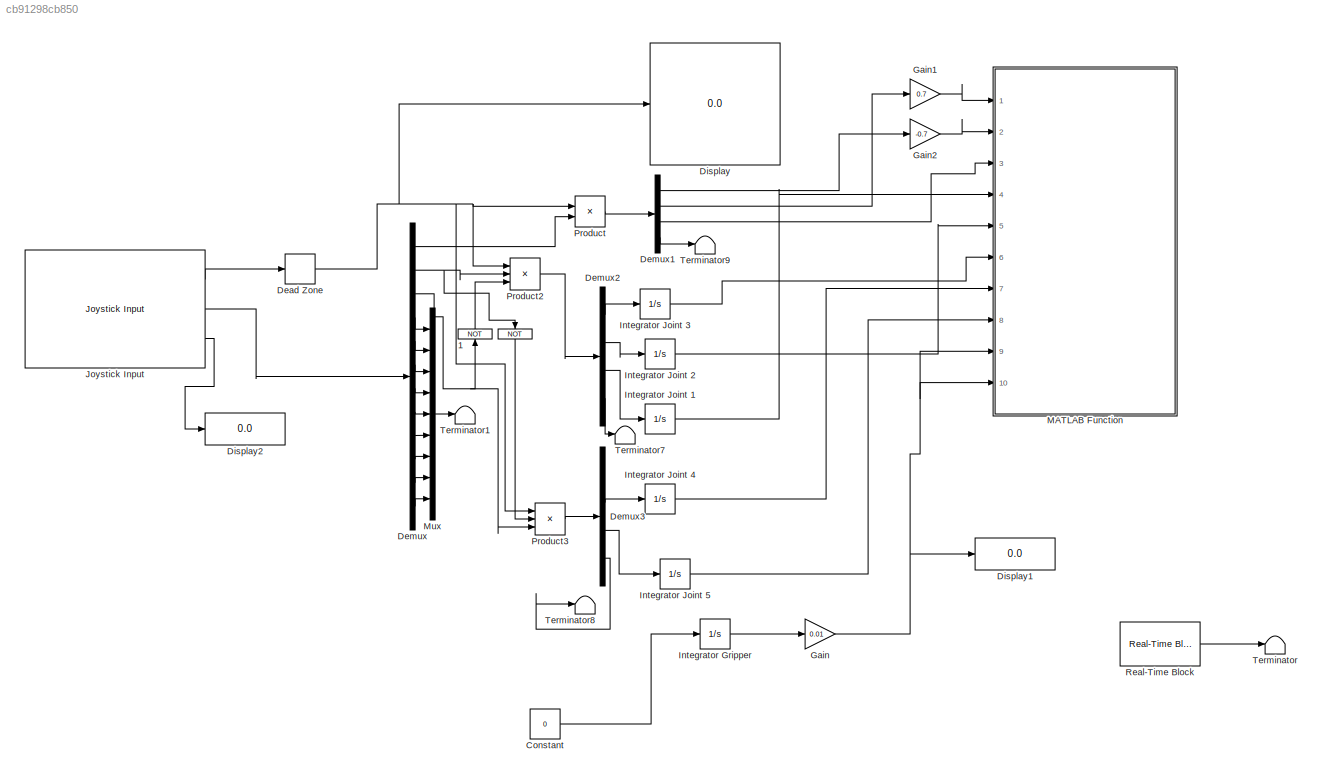
MODEL slx_cb91298cb850
KIND model
BLOCK [Logic]  
  AllPortsSameDT = off
  Operator = NOT
  OutDataTypeStr = boolean
  Ports = [1, 1]
BLOCK [Logic]  1
  AllPortsSameDT = off
  Operator = NOT
  OutDataTypeStr = boolean
  Ports = [1, 1]
BLOCK [Constant] Constant
  Value = 0
BLOCK [DeadZone] Dead Zone
  LowerValue = -0.1
  UpperValue = 0.1
BLOCK [Demux] Demux
  DisplayOption = bar
  Outputs = 12
  Ports = [1, 12]
BLOCK [Demux] Demux1
  DisplayOption = bar
  Ports = [1, 4]
BLOCK [Demux] Demux2
  DisplayOption = bar
  Ports = [1, 4]
BLOCK [Demux] Demux3
  DisplayOption = bar
  Ports = [1, 4]
BLOCK [Display] Display
  Decimation = 1
  Ports = [1]
BLOCK [Display] Display1
  Decimation = 1
  Ports = [1]
BLOCK [Display] Display2
  Decimation = 1
  Ports = [1]
BLOCK [Gain] Gain
  Gain = 0.01
  OutDataTypeStr = Inherit: Inherit via internal rule
  ParamDataTypeStr = Inherit: Inherit via internal rule
  SaturateOnIntegerOverflow = off
BLOCK [Gain] Gain1
  Gain = 0.7
  OutDataTypeStr = Inherit: Inherit via internal rule
  ParamDataTypeStr = Inherit: Inherit via internal rule
  SaturateOnIntegerOverflow = off
BLOCK [Gain] Gain2
  Gain = -0.7
  OutDataTypeStr = Inherit: Inherit via internal rule
  ParamDataTypeStr = Inherit: Inherit via internal rule
  SaturateOnIntegerOverflow = off
BLOCK [Integrator] Integrator Gripper
  LimitOutput = on
  LowerSaturationLimit = 0
  Ports = [1, 1]
  UpperSaturationLimit = 1
BLOCK [Integrator] Integrator Joint 1 
  InitialCondition = 0.02
  LimitOutput = on
  LowerSaturationLimit = 0.02
  Ports = [1, 1]
  UpperSaturationLimit = 5.84
BLOCK [Integrator] Integrator Joint 2
  InitialCondition = 0.02
  LimitOutput = on
  LowerSaturationLimit = 0.02
  Ports = [1, 1]
  UpperSaturationLimit = 2.61
BLOCK [Integrator] Integrator Joint 3 
  InitialCondition = -0.02
  LimitOutput = on
  LowerSaturationLimit = -5.02
  Ports = [1, 1]
  UpperSaturationLimit = -0.02
BLOCK [Integrator] Integrator Joint 4
  InitialCondition = 0.03
  LimitOutput = on
  LowerSaturationLimit = 0.03
  Ports = [1, 1]
  UpperSaturationLimit = 3.42
BLOCK [Integrator] Integrator Joint 5 
  InitialCondition = 0.12
  LimitOutput = on
  LowerSaturationLimit = 0.12
  Ports = [1, 1]
  UpperSaturationLimit = 5.64
BLOCK [Reference] Joystick Input  REF=vrlib/Joystick Input
  Ports = [0, 3]
  SourceBlock = vrlib/Joystick Input
  SourceType = Joystick Input
  adjustports = on
  forcefeed = off
  joyid = 1
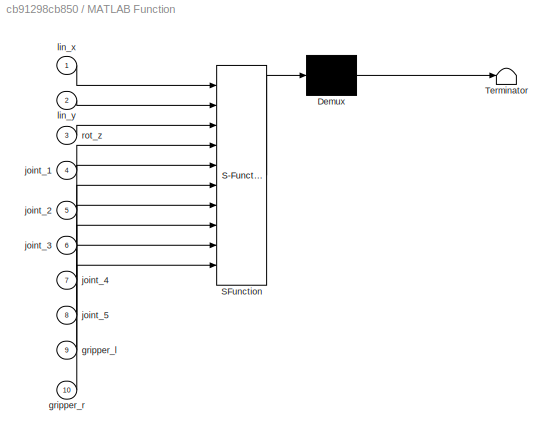
BLOCK [SubSystem] MATLAB Function
  ErrorFcn = Stateflow.Translate.translate
  FunctionWithSeparateData = off
  MaskHideContents = off
  MinAlgLoopOccurrences = off
  Opaque = off
  PermitHierarchicalResolution = ExplicitOnly
  Ports = [10]
  PropExecContextOutsideSubsystem = off
  RTWSystemCode = Auto
  RequestExecContextInheritance = off
  SFBlockType = MATLAB Function
  StartFcn = %ros_node = rosmatlab.node('KUKA_SIMULINK_CONTROL','192.168.65.59',11311);          \n ros_node = rosmatlab.node('KUKA_SIMULINK_CONTROL',youbot_ip, youbot_port);          \n\n% Base                                        \n\n    publisher_na_kuko = rosmatlab.publisher('/cmd_vel','geometry_msgs/Twist',ros_node);                                     \n    kuka_message = rosmatlab.message('geometry_msgs/Twi...<+8090ch>
  StopFcn = kuka_message.getLinear.setX(0);         \nkuka_message.getLinear.setY(0);         \nkuka_message.getLinear.setZ(0);         \nkuka_message.getAngular.setX(0);        \nkuka_message.getAngular.setY(0);        \nkuka_message.getAngular.setZ(0);        \npublisher_na_kuko.publish(kuka_message);\nros_node.delete                         \n\nclear arm_header_message;\nclear arm_kuka_message;\nclear gripper_L_messa...<+348ch>
  TreatAsAtomicUnit = on
BLOCK [Demux] MATLAB Function/ Demux 
  Outputs = 1
  Ports = [1, 1]
BLOCK [S-Function] MATLAB Function/ SFunction 
  EnableBusSupport = on
  FunctionName = sf_sfun
  PortCounts = [10 1]
  Ports = [10, 1]
  Tag = Stateflow S-Function youbot_no_encoders_joystick_control 2
BLOCK [Terminator] MATLAB Function/ Terminator 
BLOCK [Inport] MATLAB Function/gripper_l
  IconDisplay = Port number
  Port = 9
BLOCK [Inport] MATLAB Function/gripper_r
  IconDisplay = Port number
  Port = 10
BLOCK [Inport] MATLAB Function/joint_1
  IconDisplay = Port number
  Port = 4
BLOCK [Inport] MATLAB Function/joint_2
  IconDisplay = Port number
  Port = 5
BLOCK [Inport] MATLAB Function/joint_3
  IconDisplay = Port number
  Port = 6
BLOCK [Inport] MATLAB Function/joint_4
  IconDisplay = Port number
  Port = 7
BLOCK [Inport] MATLAB Function/joint_5
  IconDisplay = Port number
  Port = 8
BLOCK [Inport] MATLAB Function/lin_x
  IconDisplay = Port number
BLOCK [Inport] MATLAB Function/lin_y
  IconDisplay = Port number
  Port = 2
BLOCK [Inport] MATLAB Function/rot_z
  IconDisplay = Port number
  Port = 3
BLOCK [Mux] Mux
  DisplayOption = bar
  Inputs = 9
  Ports = [9, 1]
BLOCK [Product] Product
  InputSameDT = off
  OutDataTypeStr = Inherit: Inherit via internal rule
  Ports = [2, 1]
  RndMeth = Floor
  SaturateOnIntegerOverflow = off
BLOCK [Product] Product2
  InputSameDT = off
  Inputs = 3
  OutDataTypeStr = Inherit: Inherit via internal rule
  Ports = [3, 1]
  RndMeth = Floor
  SaturateOnIntegerOverflow = off
BLOCK [Product] Product3
  InputSameDT = off
  Inputs = 3
  OutDataTypeStr = Inherit: Inherit via internal rule
  Ports = [3, 1]
  RndMeth = Floor
  SaturateOnIntegerOverflow = off
BLOCK [Reference] Real-Time Block  REF=robotica/Utilities blocks/Real-Time Block
  Ports = [0, 1]
  SourceBlock = robotica/Utilities blocks/Real-Time Block
  sync_time = 0.01
  sync_type = Fixed
BLOCK [Terminator] Terminator
BLOCK [Terminator] Terminator1
BLOCK [Terminator] Terminator7
BLOCK [Terminator] Terminator8
BLOCK [Terminator] Terminator9
LINE  1:1 -> Product2:3
LINE  :1 -> Product3:2
LINE Constant:1 -> Integrator Gripper:1
NET Dead Zone:1 -> Display:1, Product2:1, Product3:1, Product:1
LINE Demux1:1 -> Gain2:1
LINE Demux1:2 -> Gain1:1
LINE Demux1:3 -> MATLAB Function:3
LINE Demux1:4 -> Terminator9:1
LINE Demux2:1 -> Integrator Joint 3 :1
LINE Demux2:2 -> Integrator Joint 2:1
LINE Demux2:3 -> Integrator Joint 1 :1
LINE Demux2:4 -> Terminator7:1
LINE Demux3:2 -> Integrator Joint 4:1
LINE Demux3:3 -> Integrator Joint 5 :1
LINE Demux3:4 -> Terminator8:1
LINE Demux:1 -> Product:2
LINE Demux:10 -> Mux:7
LINE Demux:11 -> Mux:8
LINE Demux:12 -> Mux:9
NET Demux:2 ->  :1, Product2:2
NET Demux:3 ->  1:1, Product3:3
LINE Demux:4 -> Mux:1
LINE Demux:5 -> Mux:2
LINE Demux:6 -> Mux:3
LINE Demux:7 -> Mux:4
LINE Demux:8 -> Mux:5
LINE Demux:9 -> Mux:6
LINE Gain1:1 -> MATLAB Function:1
LINE Gain2:1 -> MATLAB Function:2
NET Gain:1 -> Display1:1, MATLAB Function:10, MATLAB Function:9
LINE Integrator Gripper:1 -> Gain:1
LINE Integrator Joint 1 :1 -> MATLAB Function:4
LINE Integrator Joint 2:1 -> MATLAB Function:5
LINE Integrator Joint 3 :1 -> MATLAB Function:6
LINE Integrator Joint 4:1 -> MATLAB Function:7
LINE Integrator Joint 5 :1 -> MATLAB Function:8
LINE Joystick Input:1 -> Dead Zone:1
LINE Joystick Input:2 -> Demux:1
LINE Joystick Input:3 -> Display2:1
LINE Mux:1 -> Terminator1:1
LINE Product2:1 -> Demux2:1
LINE Product3:1 -> Demux3:1
LINE Product:1 -> Demux1:1
LINE Real-Time Block:1 -> Terminator:1
note: NET lines group one-source signal fan-out (src -> all destinations, sorted); 1:1 wires keep LINE
